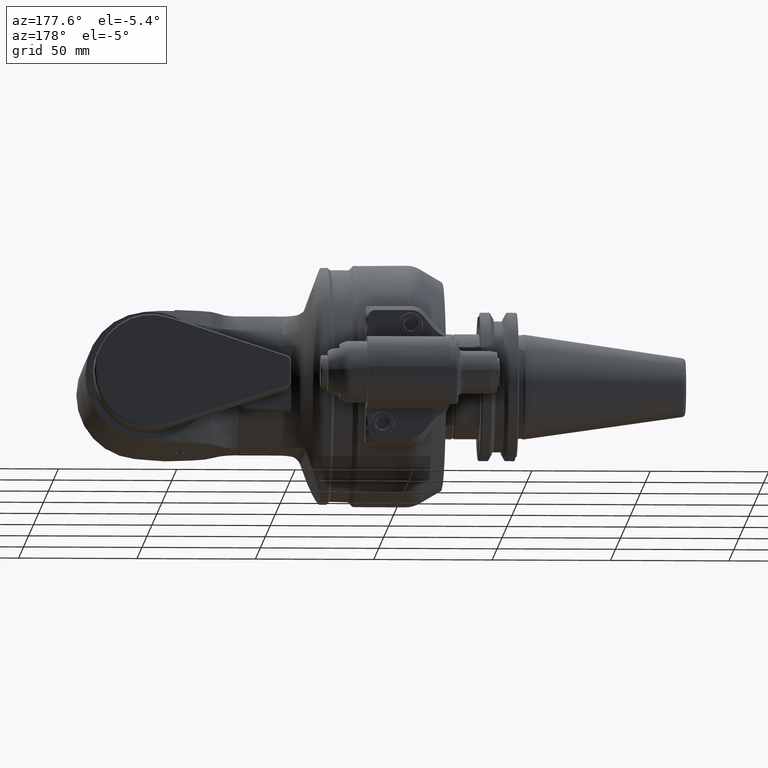
[diagram: clean part render]
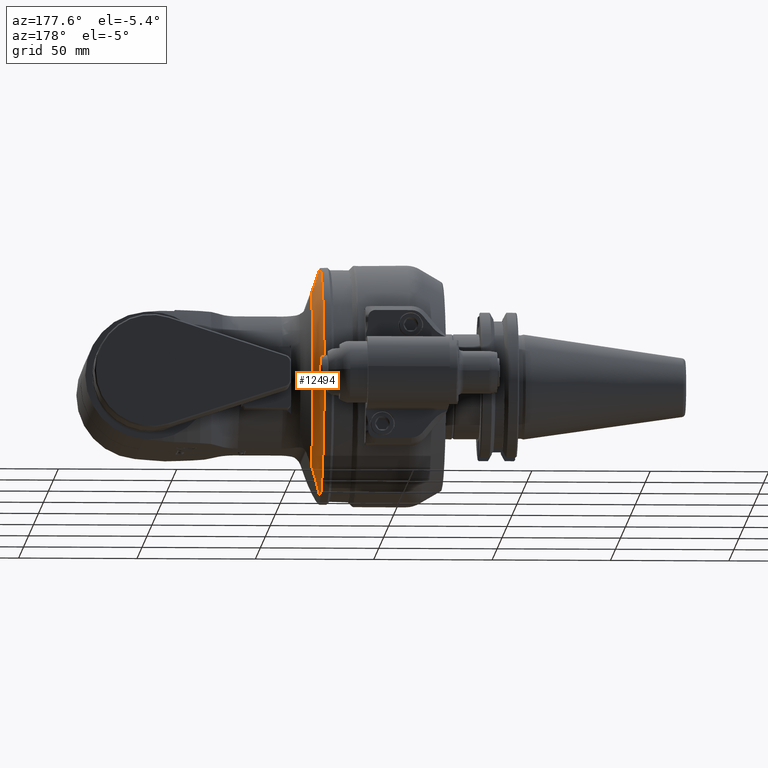
[diagram: same view with one face highlighted and labeled with its STEP entity id]
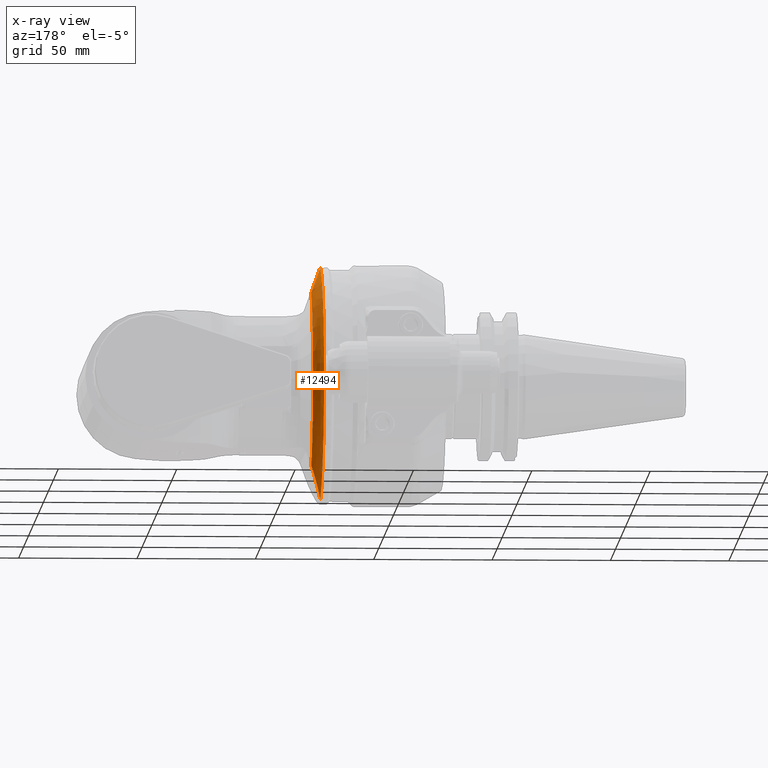
[diagram: x-ray of the same camera — body ghosted, the highlighted face saturated]
A machine part, auxiliary view. The second image highlights one B-rep face of the part: STEP entity #12494.
The next image is the same camera in x-ray: the body ghosted, the highlighted face saturated — about 0% of this face is hidden behind the body in this view.
In plain terms, the highlighted toroidal blend (fillet) surface has major radius 45 mm and minor (blend) radius 5 mm.
Its self-contained STEP definition (entity closure, byte-faithful):
#378=B_SPLINE_CURVE_WITH_KNOTS('',3,(#19971,#19972,#19973,#19974,#19975,
#19976,#19977,#19978,#19979,#19980,#19981,#19982,#19983,#19984,#19985,#19986,
#19987,#19988),.UNSPECIFIED.,.F.,.F.,(4,2,2,2,2,2,2,2,4),(7.09037016510799,
7.87701940297547,8.1777676130302,8.47851582308493,8.80354910515075,9.12858238721657,
9.39474930405345,9.46225514204568,9.47110879979648),.UNSPECIFIED.);
#381=B_SPLINE_CURVE_WITH_KNOTS('',3,(#20037,#20038,#20039,#20040,#20041,
#20042,#20043,#20044,#20045,#20046,#20047,#20048,#20049,#20050,#20051,#20052,
#20053,#20054),.UNSPECIFIED.,.F.,.F.,(4,2,2,2,2,2,2,2,4),(2.93536060873106,
2.94421427000487,3.0117201079971,3.27788702483398,3.6029203068998,3.92795358896562,
4.22870179902035,4.52945000907508,5.31609924694329),.UNSPECIFIED.);
#505=TOROIDAL_SURFACE('',#13771,45.,5.);
#1194=CIRCLE('',#13761,47.1130913087);
#1196=CIRCLE('',#13772,50.);
#1927=FACE_OUTER_BOUND('',#2718,.T.);
#2718=EDGE_LOOP('',(#8741,#8742,#8743,#8744));
#5419=VERTEX_POINT('',#19964);
#5420=VERTEX_POINT('',#19966);
#5421=VERTEX_POINT('',#19970);
#5426=VERTEX_POINT('',#20035);
#6714=EDGE_CURVE('',#5420,#5419,#1194,.T.);
#6716=EDGE_CURVE('',#5421,#5420,#378,.T.);
#6724=EDGE_CURVE('',#5419,#5426,#381,.T.);
#6725=EDGE_CURVE('',#5426,#5421,#1196,.T.);
#8741=ORIENTED_EDGE('',*,*,#6725,.T.);
#8742=ORIENTED_EDGE('',*,*,#6716,.T.);
#8743=ORIENTED_EDGE('',*,*,#6714,.T.);
#8744=ORIENTED_EDGE('',*,*,#6724,.T.);
#12494=ADVANCED_FACE('',(#1927),#505,.T.);
#13761=AXIS2_PLACEMENT_3D('',#19967,#15610,#15611);
#13771=AXIS2_PLACEMENT_3D('',#20055,#15630,#15631);
#13772=AXIS2_PLACEMENT_3D('',#20056,#15632,#15633);
#15610=DIRECTION('center_axis',(-1.,0.,0.));
#15611=DIRECTION('ref_axis',(0.,0.62797389242353,0.778234405840837));
#15630=DIRECTION('center_axis',(-1.,0.,0.));
#15631=DIRECTION('ref_axis',(0.,1.,0.));
#15632=DIRECTION('center_axis',(1.,0.,0.));
#15633=DIRECTION('ref_axis',(0.,0.187279909699701,-0.982306589320703));
#19964=CARTESIAN_POINT('',(20.8461875690238,29.5857914005876,-36.6650285727869));
#19966=CARTESIAN_POINT('',(20.8461875655817,29.5857913645109,36.6650286113831));
#19967=CARTESIAN_POINT('Origin',(20.84618757091,0.,0.));
#19970=CARTESIAN_POINT('',(16.31464863572,9.363995484997,49.11532946604));
#19971=CARTESIAN_POINT('Ctrl Pts',(16.3146486357191,9.36399548499574,49.1153294660331));
#19972=CARTESIAN_POINT('Ctrl Pts',(16.5089546643459,12.164113097356,48.5814780399171));
#19973=CARTESIAN_POINT('Ctrl Pts',(16.7970626489289,14.8926841819648,47.7899078579108));
#19974=CARTESIAN_POINT('Ctrl Pts',(17.2779022721392,18.2335890551422,46.4688118507617));
#19975=CARTESIAN_POINT('Ctrl Pts',(17.4371534747882,19.2325943001654,46.0312727674626));
#19976=CARTESIAN_POINT('Ctrl Pts',(17.7890019232365,21.1784209335023,45.0645771002807));
#19977=CARTESIAN_POINT('Ctrl Pts',(17.9817805222086,22.1249619431992,44.5349222526509));
#19978=CARTESIAN_POINT('Ctrl Pts',(18.3765030725583,23.8625497430824,43.4504309586156));
#19979=CARTESIAN_POINT('Ctrl Pts',(18.6191470504405,24.8187856959593,42.7837721084178));
#19980=CARTESIAN_POINT('Ctrl Pts',(19.1522606848867,26.6017151146837,41.3190544357736));
#19981=CARTESIAN_POINT('Ctrl Pts',(19.4425932033076,27.4287590831444,40.5213723972789));
#19982=CARTESIAN_POINT('Ctrl Pts',(19.9758958164078,28.6338312433967,39.05613551005));
#19983=CARTESIAN_POINT('Ctrl Pts',(20.2825600158396,29.2079207962777,38.2135825467563));
#19984=CARTESIAN_POINT('Ctrl Pts',(20.6474740822835,29.5221310747005,37.2109893891602));
#19985=CARTESIAN_POINT('Ctrl Pts',(20.738047373882,29.5748920999617,36.9621413156877));
#19986=CARTESIAN_POINT('Ctrl Pts',(20.825030073262,29.585260160092,36.7231583132581));
#19987=CARTESIAN_POINT('Ctrl Pts',(20.8354969508078,29.5858990862538,36.6944008035487));
#19988=CARTESIAN_POINT('Ctrl Pts',(20.8461875558156,29.5857914024331,36.6650286076895));
#20035=CARTESIAN_POINT('',(16.31464863572,9.363995484987,-49.11532946603));
#20037=CARTESIAN_POINT('Ctrl Pts',(20.8461875685801,29.5857914023046,-36.6650285726192));
#20038=CARTESIAN_POINT('Ctrl Pts',(20.8354969591388,29.5858990867593,-36.6944007806596));
#20039=CARTESIAN_POINT('Ctrl Pts',(20.8250300772751,29.5852601605704,-36.7231583022321));
#20040=CARTESIAN_POINT('Ctrl Pts',(20.738047373882,29.5748920999617,-36.9621413156877));
#20041=CARTESIAN_POINT('Ctrl Pts',(20.6474740822835,29.5221310747005,-37.2109893891602));
#20042=CARTESIAN_POINT('Ctrl Pts',(20.2825600158396,29.2079207962777,-38.2135825467563));
#20043=CARTESIAN_POINT('Ctrl Pts',(19.9758958164078,28.6338312433967,-39.05613551005));
#20044=CARTESIAN_POINT('Ctrl Pts',(19.4425932033076,27.4287590831444,-40.5213723972789));
#20045=CARTESIAN_POINT('Ctrl Pts',(19.1522606848867,26.6017151146837,-41.3190544357736));
#20046=CARTESIAN_POINT('Ctrl Pts',(18.6191470504405,24.8187856959593,-42.7837721084178));
#20047=CARTESIAN_POINT('Ctrl Pts',(18.3765030725583,23.8625497430824,-43.4504309586156));
#20048=CARTESIAN_POINT('Ctrl Pts',(17.9817805222086,22.1249619431991,-44.5349222526509));
#20049=CARTESIAN_POINT('Ctrl Pts',(17.7890019232365,21.1784209335023,-45.0645771002807));
#20050=CARTESIAN_POINT('Ctrl Pts',(17.4371534747882,19.2325943001654,-46.0312727674626));
#20051=CARTESIAN_POINT('Ctrl Pts',(17.2779022721392,18.2335890551422,-46.4688118507617));
#20052=CARTESIAN_POINT('Ctrl Pts',(16.7970626489286,14.8926841819625,-47.7899078579117));
#20053=CARTESIAN_POINT('Ctrl Pts',(16.5089546643454,12.164113097351,-48.5814780399186));
#20054=CARTESIAN_POINT('Ctrl Pts',(16.3146486357186,9.36399548498797,-49.1153294660346));
#20055=CARTESIAN_POINT('Origin',(16.31464863572,0.,0.));
#20056=CARTESIAN_POINT('Origin',(16.31464863572,0.,0.));